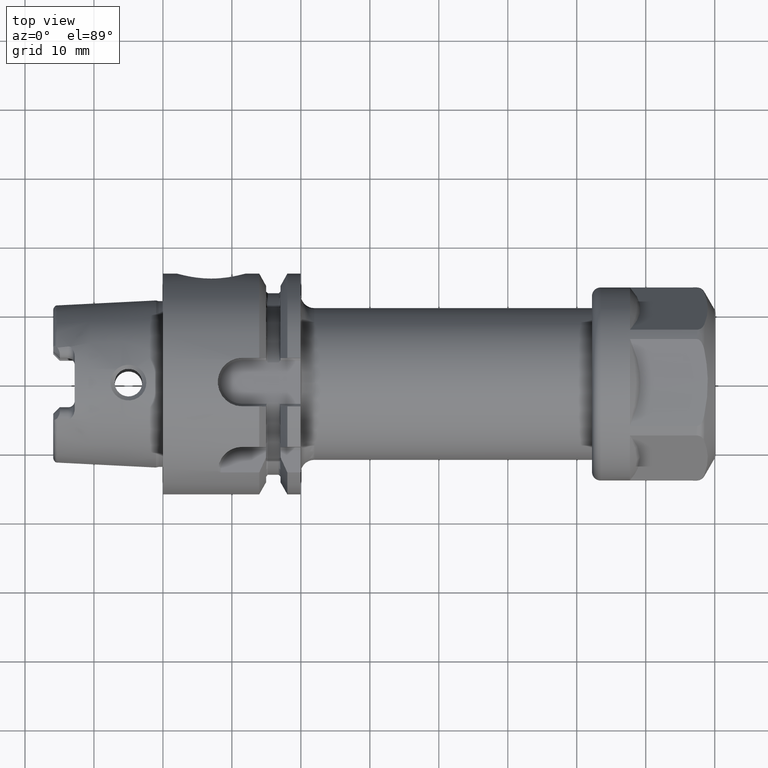
[diagram: clean part render]
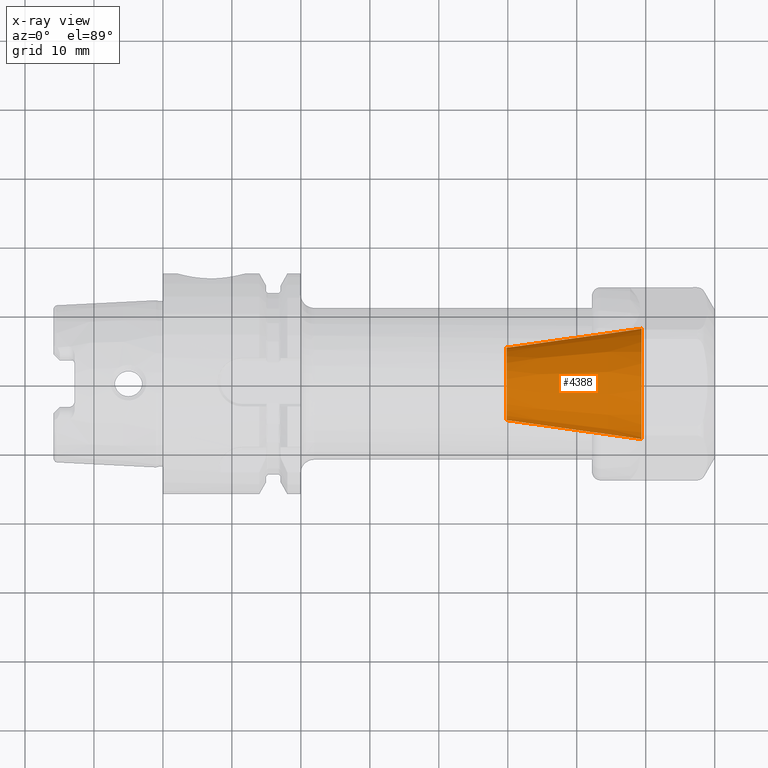
[diagram: x-ray — body ghosted, one internal face saturated and labeled with its STEP entity id]
A machine part, top view, then the same camera in x-ray: the body is ghosted and one INTERNAL B-rep face — a face not visible from any outside direction — is saturated and labeled: STEP entity #4388.
In plain terms, the highlighted conical surface has half-angle 8 deg.
Its self-contained STEP definition (entity closure, byte-faithful):
#1253=CARTESIAN_POINT('',(6.94E1,0.E0,0.E0));
#1254=DIRECTION('',(1.E0,0.E0,0.E0));
#1255=DIRECTION('',(0.E0,1.E0,0.E0));
#1256=AXIS2_PLACEMENT_3D('',#1253,#1254,#1255);
#1263=DIRECTION('',(-9.902680687416E-1,1.391731009601E-1,0.E0));
#1264=VECTOR('',#1263,1.975956546940E1);
#1265=CARTESIAN_POINT('',(6.94E1,-8.E0,0.E0));
#1266=LINE('',#1265,#1264);
#1267=DIRECTION('',(-9.902680687416E-1,-1.391731009601E-1,0.E0));
#1268=VECTOR('',#1267,1.975956546940E1);
#1269=CARTESIAN_POINT('',(6.94E1,8.E0,0.E0));
#1270=LINE('',#1269,#1268);
#1284=CARTESIAN_POINT('',(4.983273326344E1,0.E0,0.E0));
#1285=DIRECTION('',(1.E0,0.E0,0.E0));
#1286=DIRECTION('',(0.E0,1.E0,0.E0));
#1287=AXIS2_PLACEMENT_3D('',#1284,#1285,#1286);
#3104=CARTESIAN_POINT('',(4.983273326344E1,5.25E0,0.E0));
#3106=VERTEX_POINT('',#3104);
#3108=CARTESIAN_POINT('',(4.983273326344E1,-5.25E0,0.E0));
#3110=VERTEX_POINT('',#3108);
#3134=CARTESIAN_POINT('',(6.94E1,8.E0,0.E0));
#3135=CARTESIAN_POINT('',(6.94E1,-8.E0,0.E0));
#3136=VERTEX_POINT('',#3134);
#3137=VERTEX_POINT('',#3135);
#4374=CARTESIAN_POINT('',(5.961636663172E1,0.E0,0.E0));
#4375=DIRECTION('',(1.E0,0.E0,0.E0));
#4376=DIRECTION('',(0.E0,-1.E0,0.E0));
#4377=AXIS2_PLACEMENT_3D('',#4374,#4375,#4376);
#4378=CONICAL_SURFACE('',#4377,6.625E0,8.E0);
#4379=ORIENTED_EDGE('',*,*,#4367,.F.);
#4381=ORIENTED_EDGE('',*,*,#4380,.T.);
#4383=ORIENTED_EDGE('',*,*,#4382,.T.);
#4385=ORIENTED_EDGE('',*,*,#4384,.F.);
#4386=EDGE_LOOP('',(#4379,#4381,#4383,#4385));
#4387=FACE_OUTER_BOUND('',#4386,.F.);
#4388=ADVANCED_FACE('',(#4387),#4378,.F.);
#1257=CIRCLE('',#1256,8.E0);
#1288=CIRCLE('',#1287,5.25E0);
#4367=EDGE_CURVE('',#3136,#3137,#1257,.T.);
#4380=EDGE_CURVE('',#3136,#3106,#1270,.T.);
#4382=EDGE_CURVE('',#3106,#3110,#1288,.T.);
#4384=EDGE_CURVE('',#3137,#3110,#1266,.T.);